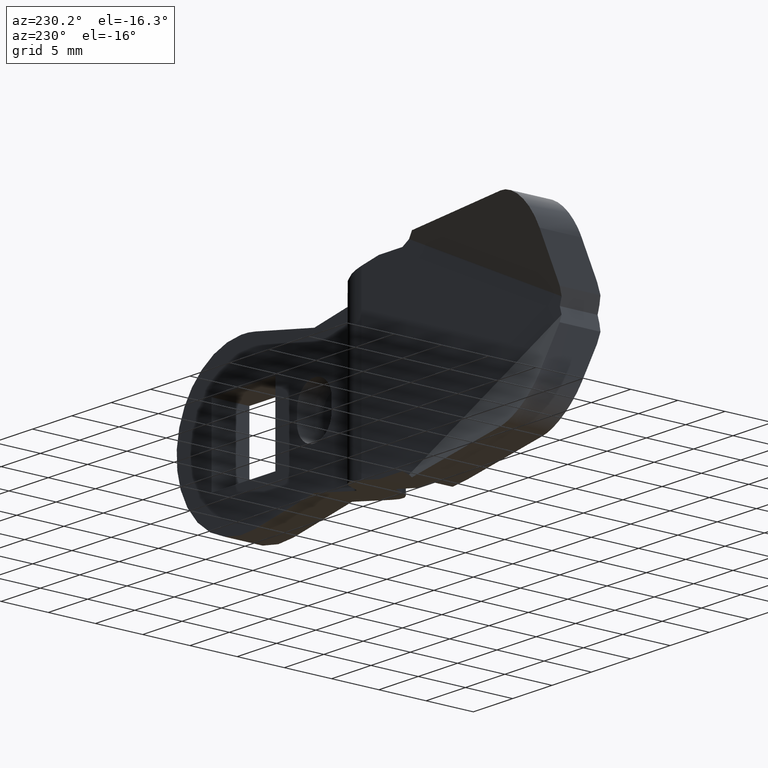
[diagram: clean part render]
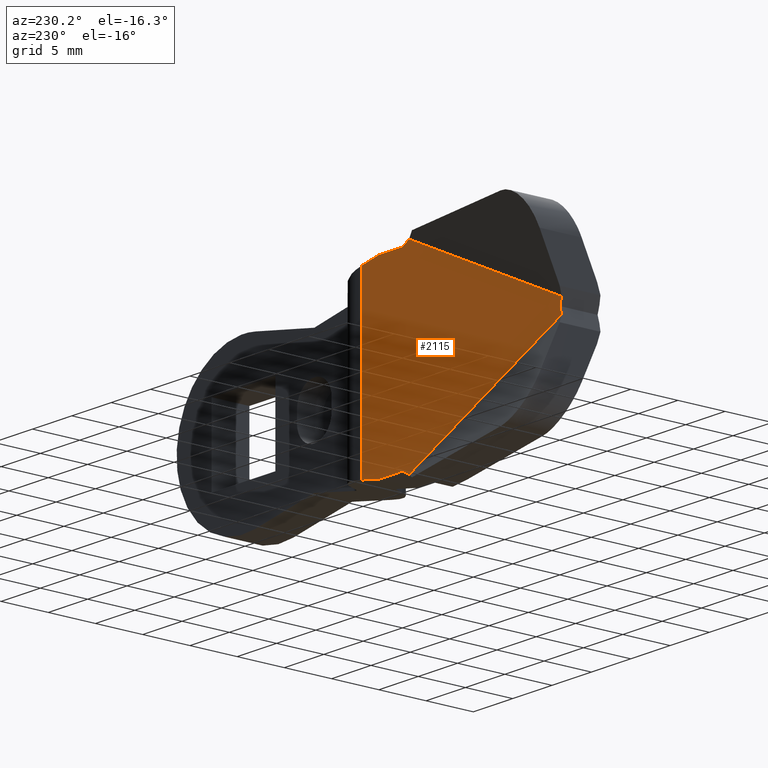
[diagram: same view with one face highlighted and labeled with its STEP entity id]
A machine part, auxiliary view. The second image highlights one B-rep face of the part: STEP entity #2115.
In plain terms, the highlighted face is a freeform B-spline surface patch.
Its self-contained STEP definition (entity closure, byte-faithful):
#60=CARTESIAN_POINT('',(-19.801815658832648,0.0,9.077272492358230));
#61=VERTEX_POINT('',#60);
#82=CARTESIAN_POINT('',(-19.801815658832648,0.0,-9.077272492358219));
#83=VERTEX_POINT('',#82);
#97=CARTESIAN_POINT('',(-19.801815658832648,0.0,9.077272492358230));
#98=CARTESIAN_POINT('',(-19.801815658832648,0.0,-9.077272492358219));
#99=QUASI_UNIFORM_CURVE('',1,(#97,#98),.UNSPECIFIED.,.F.,.U.);
#100=EDGE_CURVE('',#61,#83,#99,.T.);
#1302=CARTESIAN_POINT('',(-45.230142657384512,0.0,0.773577127678626));
#1303=VERTEX_POINT('',#1302);
#1309=CARTESIAN_POINT('',(-45.000002137384797,0.0,-1.136868E-013));
#1310=VERTEX_POINT('',#1309);
#1311=CARTESIAN_POINT('',(-45.230142657384512,0.0,0.773577127678626));
#1312=CARTESIAN_POINT('',(-45.000002137384797,0.0,-1.136868E-013));
#1313=QUASI_UNIFORM_CURVE('',1,(#1311,#1312),.UNSPECIFIED.,.F.,.U.);
#1314=EDGE_CURVE('',#1303,#1310,#1313,.T.);
#1343=CARTESIAN_POINT('',(-45.230142657383603,3.642919E-014,-0.773577127679235));
#1344=VERTEX_POINT('',#1343);
#1345=CARTESIAN_POINT('',(-45.000002137384797,0.0,-1.136868E-013));
#1346=CARTESIAN_POINT('',(-45.230142657383603,3.642919E-014,-0.773577127679235));
#1347=QUASI_UNIFORM_CURVE('',1,(#1345,#1346),.UNSPECIFIED.,.F.,.U.);
#1348=EDGE_CURVE('',#1310,#1344,#1347,.T.);
#1789=CARTESIAN_POINT('',(-25.000001187432851,0.0,9.500000451225802));
#1790=VERTEX_POINT('',#1789);
#1796=CARTESIAN_POINT('',(-25.838711749085650,3.337608E-014,9.984506809118299));
#1797=VERTEX_POINT('',#1796);
#1798=CARTESIAN_POINT('',(-25.838711749085650,3.337608E-014,9.984506809118299));
#1799=CARTESIAN_POINT('',(-25.000001187432851,0.0,9.500000451225802));
#1800=QUASI_UNIFORM_CURVE('',1,(#1798,#1799),.UNSPECIFIED.,.F.,.U.);
#1801=EDGE_CURVE('',#1797,#1790,#1800,.T.);
#1841=CARTESIAN_POINT('',(-25.838711749085700,6.071532E-014,-9.984506809118408));
#1842=VERTEX_POINT('',#1841);
#1848=CARTESIAN_POINT('',(-25.000001187436251,0.0,-9.500000451225791));
#1849=VERTEX_POINT('',#1848);
#1850=CARTESIAN_POINT('',(-25.000001187436251,0.0,-9.500000451225791));
#1851=CARTESIAN_POINT('',(-25.838711749085700,6.071532E-014,-9.984506809118408));
#1852=QUASI_UNIFORM_CURVE('',1,(#1850,#1851),.UNSPECIFIED.,.F.,.U.);
#1853=EDGE_CURVE('',#1849,#1842,#1852,.T.);
#1910=CARTESIAN_POINT('',(-45.230142657384512,0.0,0.773577127678626));
#1911=CARTESIAN_POINT('',(-25.838711749085650,3.337608E-014,9.984506809118299));
#1912=QUASI_UNIFORM_CURVE('',1,(#1910,#1911),.UNSPECIFIED.,.F.,.U.);
#1913=EDGE_CURVE('',#1303,#1797,#1912,.T.);
#1924=CARTESIAN_POINT('',(-25.838711749085700,6.071532E-014,-9.984506809118408));
#1925=CARTESIAN_POINT('',(-45.230142657383603,3.642919E-014,-0.773577127679235));
#1926=QUASI_UNIFORM_CURVE('',1,(#1924,#1925),.UNSPECIFIED.,.F.,.U.);
#1927=EDGE_CURVE('',#1842,#1344,#1926,.T.);
#1973=CARTESIAN_POINT('',(-22.000001044943449,1.110223E-013,-9.500000451225802));
#1974=VERTEX_POINT('',#1973);
#1980=CARTESIAN_POINT('',(-22.000001044943449,1.110223E-013,-9.500000451225802));
#1981=CARTESIAN_POINT('',(-19.801815658832648,0.0,-9.077272492358219));
#1982=QUASI_UNIFORM_CURVE('',1,(#1980,#1981),.UNSPECIFIED.,.F.,.U.);
#1983=EDGE_CURVE('',#1974,#83,#1982,.T.);
#2022=CARTESIAN_POINT('',(-22.000001044943499,1.110223E-013,9.500000451225791));
#2023=VERTEX_POINT('',#2022);
#2024=CARTESIAN_POINT('',(-19.801815658832648,0.0,9.077272492358230));
#2025=CARTESIAN_POINT('',(-22.000001044943499,1.110223E-013,9.500000451225791));
#2026=QUASI_UNIFORM_CURVE('',1,(#2024,#2025),.UNSPECIFIED.,.F.,.U.);
#2027=EDGE_CURVE('',#61,#2023,#2026,.T.);
#2050=CARTESIAN_POINT('',(-22.000001044943449,1.110223E-013,-9.500000451225802));
#2051=CARTESIAN_POINT('',(-25.000001187436251,0.0,-9.500000451225791));
#2052=QUASI_UNIFORM_CURVE('',1,(#2050,#2051),.UNSPECIFIED.,.F.,.U.);
#2053=EDGE_CURVE('',#1974,#1849,#2052,.T.);
#2076=CARTESIAN_POINT('',(-25.000001187432851,0.0,9.500000451225802));
#2077=CARTESIAN_POINT('',(-22.000001044943499,1.110223E-013,9.500000451225791));
#2078=QUASI_UNIFORM_CURVE('',1,(#2076,#2077),.UNSPECIFIED.,.F.,.U.);
#2079=EDGE_CURVE('',#1790,#2023,#2078,.T.);
#2097=CARTESIAN_POINT('',(-46.500289451300652,3.552714E-014,10.981958813190589));
#2098=CARTESIAN_POINT('',(-18.531670001651289,3.552714E-014,10.981958813190589));
#2099=CARTESIAN_POINT('',(-46.500289451300652,3.552714E-014,-10.981959527338271));
#2100=CARTESIAN_POINT('',(-18.531670001651289,3.552714E-014,-10.981959527338271));
#2101=B_SPLINE_SURFACE_WITH_KNOTS('',1,1,((#2097,#2099),(#2098,#2100)),.UNSPECIFIED.,.F.,.F.,.U.,(2,2),(2,2),(0.0,27.968619449649371),(0.0,21.963918340528860),.UNSPECIFIED.);
#2102=ORIENTED_EDGE('',*,*,#2027,.F.);
#2103=ORIENTED_EDGE('',*,*,#100,.T.);
#2104=ORIENTED_EDGE('',*,*,#1983,.F.);
#2105=ORIENTED_EDGE('',*,*,#2053,.T.);
#2106=ORIENTED_EDGE('',*,*,#1853,.T.);
#2107=ORIENTED_EDGE('',*,*,#1927,.T.);
#2108=ORIENTED_EDGE('',*,*,#1348,.F.);
#2109=ORIENTED_EDGE('',*,*,#1314,.F.);
#2110=ORIENTED_EDGE('',*,*,#1913,.T.);
#2111=ORIENTED_EDGE('',*,*,#1801,.T.);
#2112=ORIENTED_EDGE('',*,*,#2079,.T.);
#2113=EDGE_LOOP('',(#2102,#2103,#2104,#2105,#2106,#2107,#2108,#2109,#2110,#2111,#2112));
#2114=FACE_OUTER_BOUND('',#2113,.T.);
#2115=ADVANCED_FACE('',(#2114),#2101,.T.);